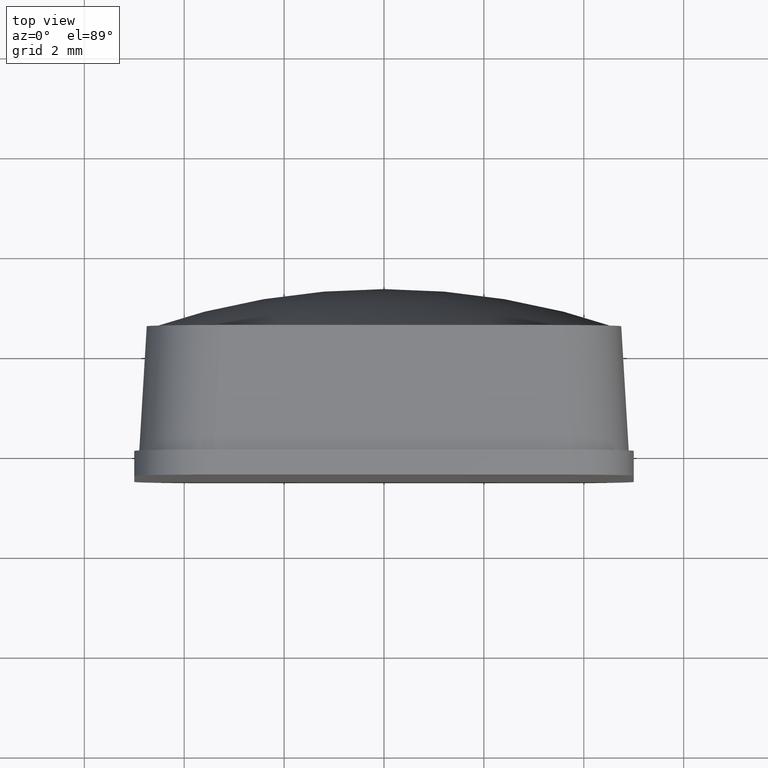
[diagram: clean part render]
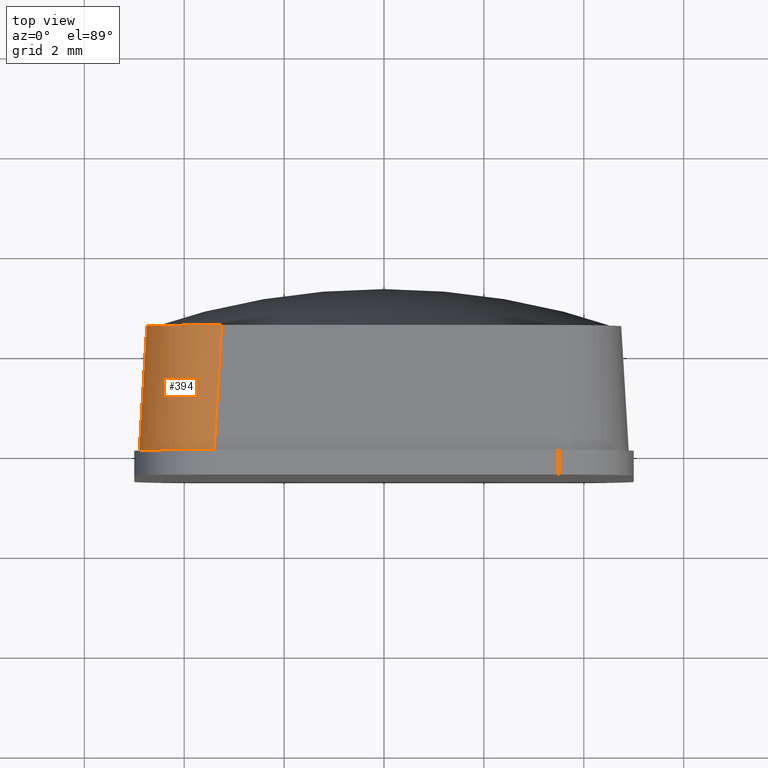
[diagram: same view with one face highlighted and labeled with its STEP entity id]
A machine part, top view. The second image highlights one B-rep face of the part: STEP entity #394.
In plain terms, the highlighted cylindrical surface (partial cylindrical patch) has radius 1.5 mm, axis along (-0.0598, -0.9964, 0.0598).
Its self-contained STEP definition (entity closure, byte-faithful):
#21=ELLIPSE('',#433,1.50539031483533,1.5);
#22=ELLIPSE('',#434,1.50539031483533,1.5);
#51=FACE_OUTER_BOUND('',#74,.T.);
#74=EDGE_LOOP('',(#316,#317,#318,#319));
#111=LINE('',#658,#147);
#112=LINE('',#661,#148);
#147=VECTOR('',#531,2.50898385805888);
#148=VECTOR('',#534,2.50898385805888);
#198=VERTEX_POINT('',#654);
#199=VERTEX_POINT('',#655);
#200=VERTEX_POINT('',#657);
#201=VERTEX_POINT('',#659);
#244=EDGE_CURVE('',#198,#199,#21,.T.);
#245=EDGE_CURVE('',#199,#200,#111,.T.);
#246=EDGE_CURVE('',#200,#201,#22,.F.);
#247=EDGE_CURVE('',#201,#198,#112,.T.);
#316=ORIENTED_EDGE('',*,*,#244,.T.);
#317=ORIENTED_EDGE('',*,*,#245,.T.);
#318=ORIENTED_EDGE('',*,*,#246,.T.);
#319=ORIENTED_EDGE('',*,*,#247,.T.);
#379=CYLINDRICAL_SURFACE('',#432,1.5);
#394=ADVANCED_FACE('',(#51),#379,.T.);
#432=AXIS2_PLACEMENT_3D('',#653,#527,#528);
#433=AXIS2_PLACEMENT_3D('',#656,#529,#530);
#434=AXIS2_PLACEMENT_3D('',#660,#532,#533);
#527=DIRECTION('center_axis',(-0.0597851594454063,-0.996419324090101,0.0597851594454061));
#528=DIRECTION('ref_axis',(-0.704574860969427,0.0845489833163313,0.704574860969428));
#529=DIRECTION('center_axis',(0.,-1.,0.));
#530=DIRECTION('ref_axis',(-0.707106781186547,0.,0.707106781186548));
#531=DIRECTION('',(-0.0597851594454063,-0.996419324090101,0.0597851594454061));
#532=DIRECTION('center_axis',(0.,-1.,0.));
#533=DIRECTION('ref_axis',(-0.707106781186547,0.,0.707106781186548));
#534=DIRECTION('',(0.0597851594454063,0.996419324090101,-0.0597851594454061));
#653=CARTESIAN_POINT('Origin',(-3.2410667450713,2.60392800940856,3.2410667450713));
#654=CARTESIAN_POINT('',(-3.25269273180133,2.5,4.75));
#655=CARTESIAN_POINT('',(-4.75,2.5,3.25269273180133));
#656=CARTESIAN_POINT('Origin',(-3.24730242563582,2.5,3.24730242563581));
#657=CARTESIAN_POINT('',(-4.9,2.77555756156289E-16,3.40269273180133));
#658=CARTESIAN_POINT('',(-4.73837401326997,2.69376644550048,3.2410667450713));
#659=CARTESIAN_POINT('',(-3.40269273180133,2.77555756156289E-16,4.9));
#660=CARTESIAN_POINT('Origin',(-3.39730242563582,0.,3.39730242563582));
#661=CARTESIAN_POINT('',(-3.2410667450713,2.69376644550048,4.73837401326997));